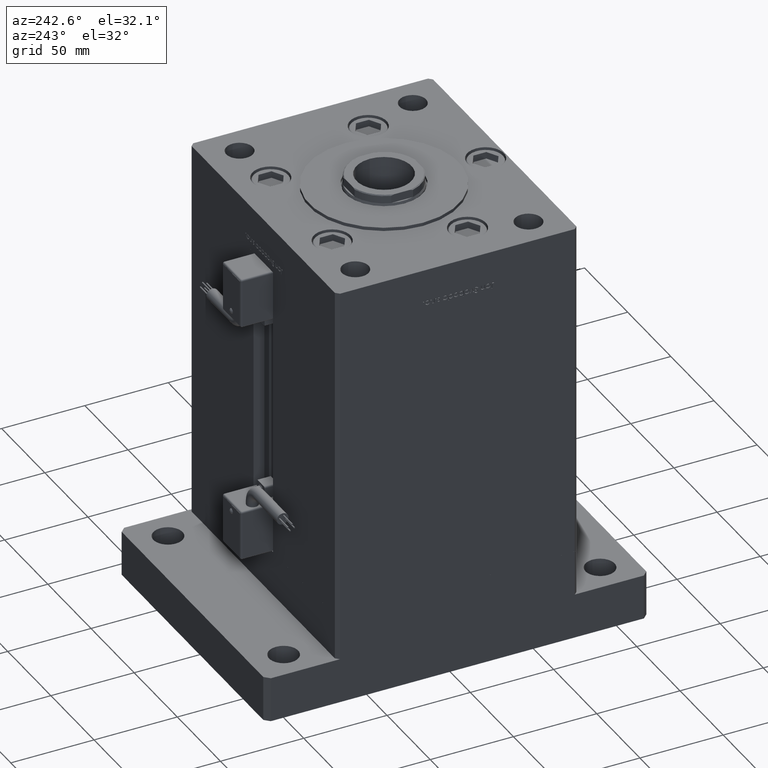
[diagram: clean part render]
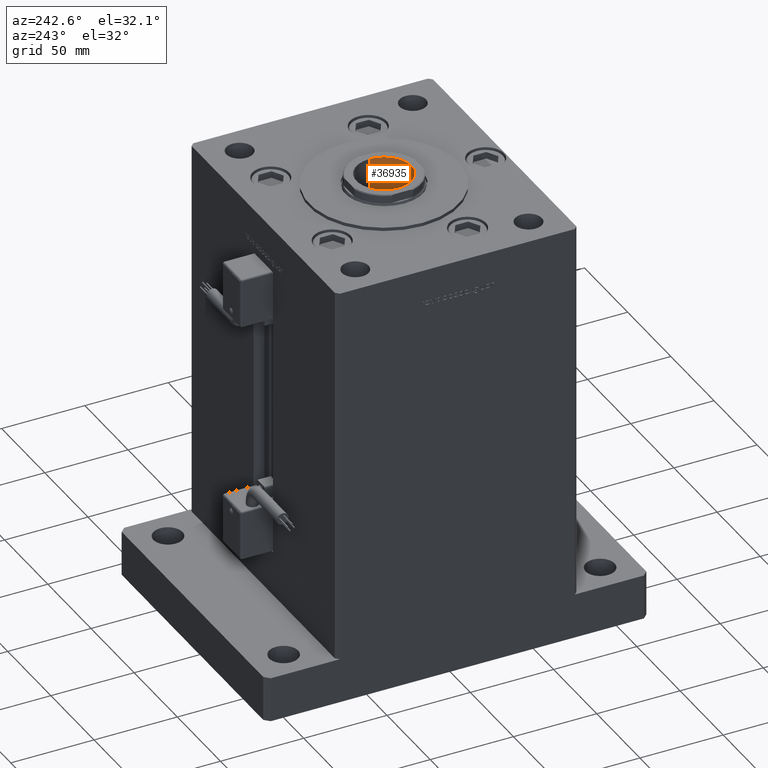
[diagram: same view with one face highlighted and labeled with its STEP entity id]
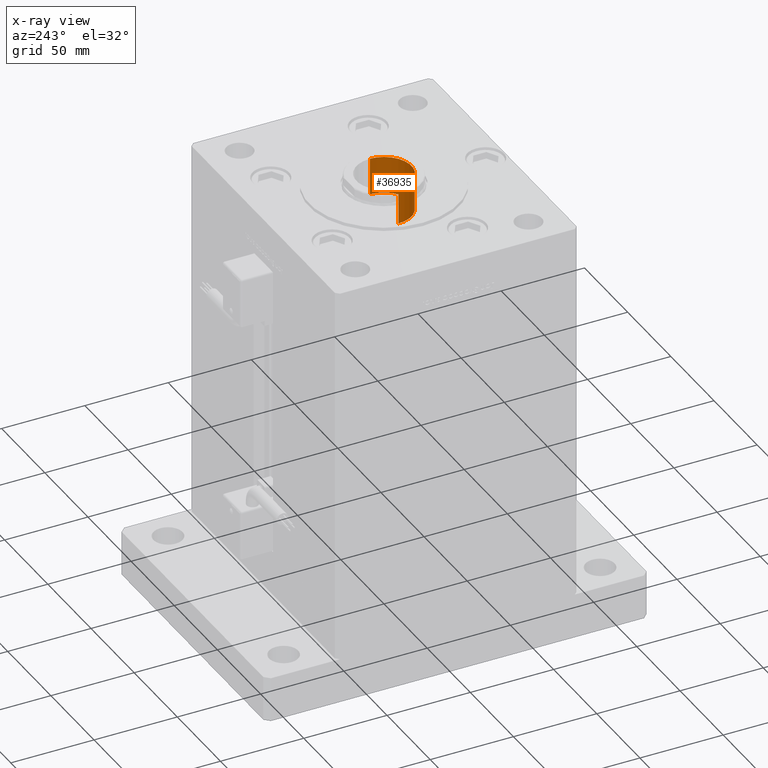
[diagram: x-ray of the same camera — body ghosted, the highlighted face saturated]
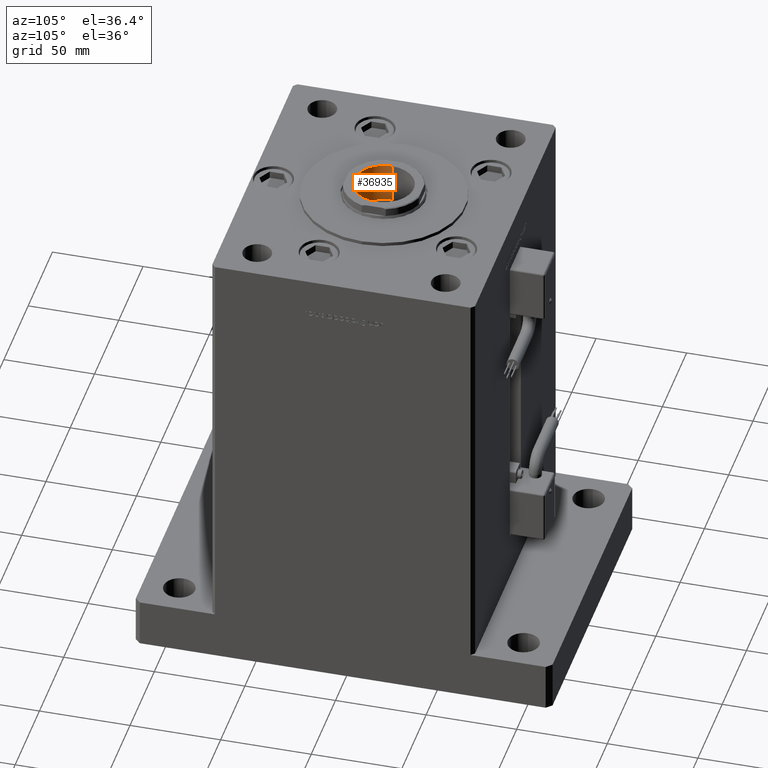
[diagram: same view with one face highlighted and labeled with its STEP entity id]
A machine part, auxiliary view. The second image highlights one B-rep face of the part: STEP entity #36935.
The next image is the same camera in x-ray: the body ghosted, the highlighted face saturated — about 0% of this face is hidden behind the body in this view.
A second angle (auxiliary view) of the same face is appended — the face is thin or edge-on in the first view.
In plain terms, the highlighted cylindrical surface (edge-blend (fillet) strip) has radius 16.5 mm, axis along (0, 0, 1).
Its self-contained STEP definition (entity closure, byte-faithful):
#1563 = ORIENTED_EDGE ( 'NONE', *, *, #5549, .T. ) ;
#2185 = VERTEX_POINT ( 'NONE', #34786 ) ;
#4907 = ORIENTED_EDGE ( 'NONE', *, *, #37215, .F. ) ;
#5549 = EDGE_CURVE ( 'NONE', #46261, #6757, #7061, .T. ) ;
#6432 = LINE ( 'NONE', #54604, #31641 ) ;
#6757 = VERTEX_POINT ( 'NONE', #51768 ) ;
#7061 = LINE ( 'NONE', #29003, #39839 ) ;
#9092 = CARTESIAN_POINT ( 'NONE',  ( -1.408343819019455979E-15, 0.000000000000000000, 0.000000000000000000 ) ) ;
#10200 = AXIS2_PLACEMENT_3D ( 'NONE', #53769, #54047, #53480 ) ;
#10432 = DIRECTION ( 'NONE',  ( 1.000000000000000000, -0.000000000000000000, -0.000000000000000000 ) ) ;
#11735 = ORIENTED_EDGE ( 'NONE', *, *, #30310, .T. ) ;
#14479 = DIRECTION ( 'NONE',  ( 1.000000000000000000, -0.000000000000000000, -0.000000000000000000 ) ) ;
#19034 = DIRECTION ( 'NONE',  ( 0.000000000000000000, 0.000000000000000000, -1.000000000000000000 ) ) ;
#21800 = EDGE_LOOP ( 'NONE', ( #4907, #1563, #11735, #46649 ) ) ;
#22670 = AXIS2_PLACEMENT_3D ( 'NONE', #9092, #26468, #43888 ) ;
#25641 = EDGE_CURVE ( 'NONE', #2185, #39935, #6432, .T. ) ;
#26468 = DIRECTION ( 'NONE',  ( 1.000000000000000000, -0.000000000000000000, -0.000000000000000000 ) ) ;
#27240 = CIRCLE ( 'NONE', #22670, 16.49999999999999645 ) ;
#27878 = FACE_OUTER_BOUND ( 'NONE', #21800, .T. ) ;
#28440 = CYLINDRICAL_SURFACE ( 'NONE', #39229, 16.49999999999999289 ) ;
#29003 = CARTESIAN_POINT ( 'NONE',  ( 0.000000000000000000, 2.020667218593132311E-15, 16.49999999999999289 ) ) ;
#30310 = EDGE_CURVE ( 'NONE', #6757, #39935, #27240, .T. ) ;
#31641 = VECTOR ( 'NONE', #10432, 1000.000000000000000 ) ;
#34782 = CIRCLE ( 'NONE', #10200, 16.49999999999999289 ) ;
#34786 = CARTESIAN_POINT ( 'NONE',  ( -22.39000000000000057, 0.000000000000000000, -16.49999999999999289 ) ) ;
#36935 = ADVANCED_FACE ( 'NONE', ( #27878 ), #28440, .F. ) ;
#37215 = EDGE_CURVE ( 'NONE', #46261, #2185, #34782, .T. ) ;
#37284 = DIRECTION ( 'NONE',  ( 1.000000000000000000, -0.000000000000000000, -0.000000000000000000 ) ) ;
#39229 = AXIS2_PLACEMENT_3D ( 'NONE', #44732, #14479, #19034 ) ;
#39839 = VECTOR ( 'NONE', #37284, 1000.000000000000000 ) ;
#39935 = VERTEX_POINT ( 'NONE', #44787 ) ;
#43888 = DIRECTION ( 'NONE',  ( 0.000000000000000000, 0.000000000000000000, -1.000000000000000000 ) ) ;
#44732 = CARTESIAN_POINT ( 'NONE',  ( 0.000000000000000000, 0.000000000000000000, 0.000000000000000000 ) ) ;
#44787 = CARTESIAN_POINT ( 'NONE',  ( -1.408343819019455979E-15, 0.000000000000000000, -16.49999999999999645 ) ) ;
#46261 = VERTEX_POINT ( 'NONE', #52855 ) ;
#46649 = ORIENTED_EDGE ( 'NONE', *, *, #25641, .F. ) ;
#51768 = CARTESIAN_POINT ( 'NONE',  ( -1.408343819019455979E-15, 2.020667218593132706E-15, 16.49999999999999645 ) ) ;
#52855 = CARTESIAN_POINT ( 'NONE',  ( -22.39000000000000057, 2.020667218593132311E-15, 16.49999999999999289 ) ) ;
#53480 = DIRECTION ( 'NONE',  ( 0.000000000000000000, 0.000000000000000000, -1.000000000000000000 ) ) ;
#53769 = CARTESIAN_POINT ( 'NONE',  ( -22.39000000000000057, 0.000000000000000000, 0.000000000000000000 ) ) ;
#54047 = DIRECTION ( 'NONE',  ( 1.000000000000000000, -0.000000000000000000, -0.000000000000000000 ) ) ;
#54604 = CARTESIAN_POINT ( 'NONE',  ( 0.000000000000000000, 0.000000000000000000, -16.49999999999999289 ) ) ;